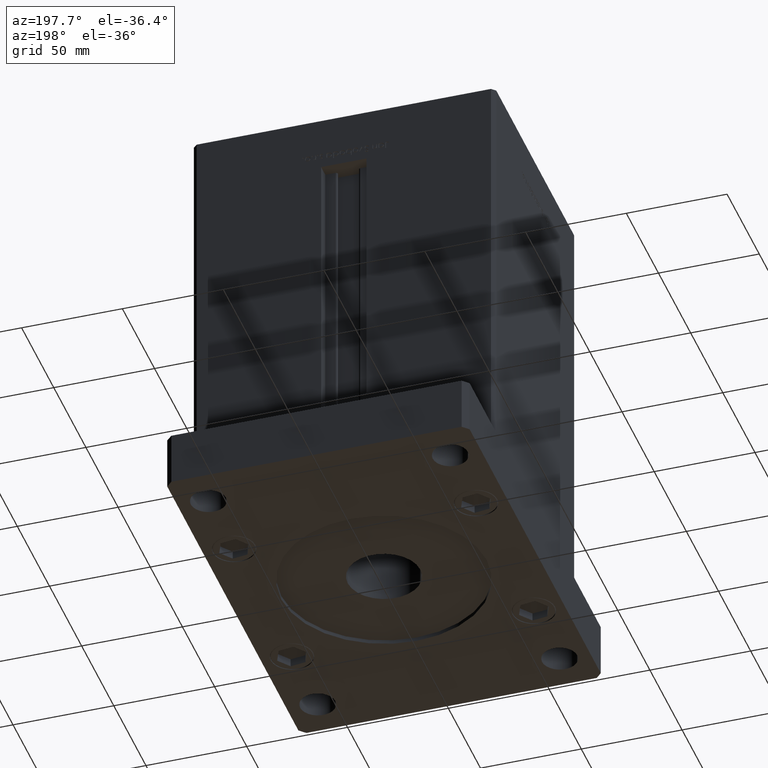
[diagram: clean part render]
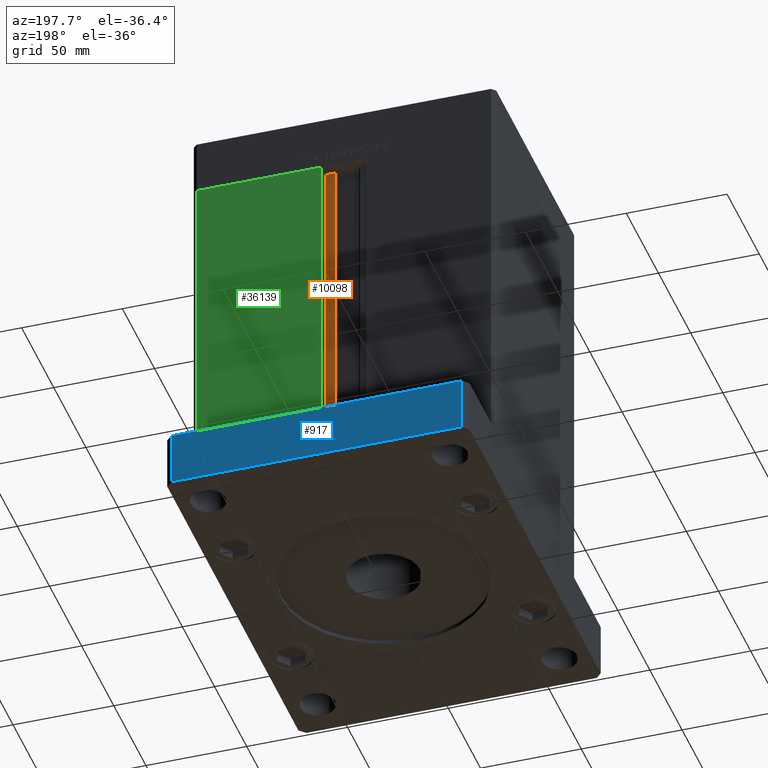
[diagram: same view with three faces highlighted in distinct colors, each labeled with its STEP entity id]
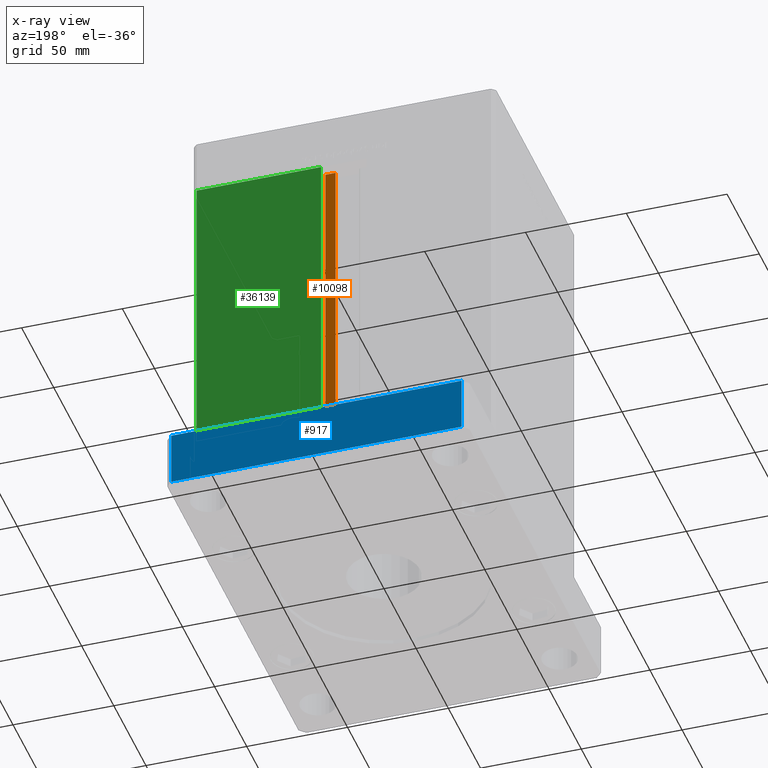
[diagram: x-ray of the same camera — body ghosted, the three highlighted faces saturated]
A machine part, auxiliary view with three faces highlighted in distinct colors.
The next image is the same camera in x-ray (body ghosted, the three faces saturated) — at least one of them is partly hidden behind the body in this view.
Their STEP definitions:

[orange] entity #10098 — the highlighted planar face has unit normal (0, -1, 0).
#336 = VERTEX_POINT ( 'NONE', #37083 ) ;
#1177 = ORIENTED_EDGE ( 'NONE', *, *, #44383, .F. ) ;
#1208 = CARTESIAN_POINT ( 'NONE',  ( 11.25000000000000178, 55.99999999999999289, 0.000000000000000000 ) ) ;
#4199 = AXIS2_PLACEMENT_3D ( 'NONE', #44657, #31648, #27309 ) ;
#4379 = ORIENTED_EDGE ( 'NONE', *, *, #12948, .F. ) ;
#4642 = EDGE_CURVE ( 'NONE', #43501, #336, #52646, .T. ) ;
#5302 = DIRECTION ( 'NONE',  ( -0.000000000000000000, -0.000000000000000000, 1.000000000000000000 ) ) ;
#6013 = EDGE_LOOP ( 'NONE', ( #4379, #1177, #35455, #41791 ) ) ;
#8189 = CARTESIAN_POINT ( 'NONE',  ( 11.25000000000000178, 55.99999999999999289, 147.0000000000000000 ) ) ;
#10098 = ADVANCED_FACE ( 'NONE', ( #42247 ), #52278, .F. ) ;
#11547 = VERTEX_POINT ( 'NONE', #1208 ) ;
#12633 = CARTESIAN_POINT ( 'NONE',  ( 6.183333333334001480, 55.99999999999999289, 0.000000000000000000 ) ) ;
#12948 = EDGE_CURVE ( 'NONE', #11547, #43501, #52801, .T. ) ;
#13420 = LINE ( 'NONE', #33537, #30614 ) ;
#14949 = CARTESIAN_POINT ( 'NONE',  ( 0.000000000000000000, 55.99999999999999289, 147.0000000000000000 ) ) ;
#16145 = VECTOR ( 'NONE', #52381, 1000.000000000000000 ) ;
#22863 = CARTESIAN_POINT ( 'NONE',  ( 6.183333333334001480, 55.99999999999999289, 0.000000000000000000 ) ) ;
#27309 = DIRECTION ( 'NONE',  ( 0.000000000000000000, -0.000000000000000000, -1.000000000000000000 ) ) ;
#27856 = DIRECTION ( 'NONE',  ( -0.000000000000000000, -0.000000000000000000, 1.000000000000000000 ) ) ;
#28023 = DIRECTION ( 'NONE',  ( 1.000000000000000000, 0.000000000000000000, 0.000000000000000000 ) ) ;
#28222 = EDGE_CURVE ( 'NONE', #29184, #336, #13420, .T. ) ;
#28275 = LINE ( 'NONE', #22863, #39726 ) ;
#29184 = VERTEX_POINT ( 'NONE', #12633 ) ;
#30614 = VECTOR ( 'NONE', #5302, 1000.000000000000000 ) ;
#31648 = DIRECTION ( 'NONE',  ( 0.000000000000000000, -1.000000000000000000, 0.000000000000000000 ) ) ;
#31918 = CARTESIAN_POINT ( 'NONE',  ( 11.25000000000000178, 55.99999999999999289, 0.000000000000000000 ) ) ;
#33537 = CARTESIAN_POINT ( 'NONE',  ( 6.183333333334001480, 55.99999999999999289, 0.000000000000000000 ) ) ;
#35455 = ORIENTED_EDGE ( 'NONE', *, *, #28222, .T. ) ;
#37083 = CARTESIAN_POINT ( 'NONE',  ( 6.183333333334001480, 55.99999999999999289, 147.0000000000000000 ) ) ;
#39726 = VECTOR ( 'NONE', #28023, 1000.000000000000000 ) ;
#41791 = ORIENTED_EDGE ( 'NONE', *, *, #4642, .F. ) ;
#42247 = FACE_OUTER_BOUND ( 'NONE', #6013, .T. ) ;
#43501 = VERTEX_POINT ( 'NONE', #8189 ) ;
#44383 = EDGE_CURVE ( 'NONE', #29184, #11547, #28275, .T. ) ;
#44657 = CARTESIAN_POINT ( 'NONE',  ( 6.183333333334001480, 55.99999999999999289, 0.000000000000000000 ) ) ;
#47593 = VECTOR ( 'NONE', #27856, 1000.000000000000000 ) ;
#52278 = PLANE ( 'NONE',  #4199 ) ;
#52381 = DIRECTION ( 'NONE',  ( -1.000000000000000000, 0.000000000000000000, 0.000000000000000000 ) ) ;
#52646 = LINE ( 'NONE', #14949, #16145 ) ;
#52801 = LINE ( 'NONE', #31918, #47593 ) ;

[blue] entity #917 — the highlighted planar face has unit normal (0, -1, 0).
#65 = DIRECTION ( 'NONE',  ( -1.000000000000000000, -1.927470528863118062E-16, 0.000000000000000000 ) ) ;
#917 = ADVANCED_FACE ( 'NONE', ( #16833 ), #49943, .F. ) ;
#3238 = VECTOR ( 'NONE', #21190, 1000.000000000000000 ) ;
#4132 = LINE ( 'NONE', #53487, #25747 ) ;
#4398 = LINE ( 'NONE', #41293, #3238 ) ;
#5618 = EDGE_LOOP ( 'NONE', ( #40736, #32053, #42585, #19294 ) ) ;
#5748 = EDGE_CURVE ( 'NONE', #44791, #35055, #4398, .T. ) ;
#5819 = EDGE_CURVE ( 'NONE', #14087, #44791, #4132, .T. ) ;
#5930 = CARTESIAN_POINT ( 'NONE',  ( -72.00000000000002842, 105.0000000000000000, 27.00000000000000000 ) ) ;
#7121 = DIRECTION ( 'NONE',  ( -0.000000000000000000, -0.000000000000000000, -1.000000000000000000 ) ) ;
#7377 = CARTESIAN_POINT ( 'NONE',  ( 72.00000000000004263, 105.0000000000000284, 27.00000000000000000 ) ) ;
#8204 = CARTESIAN_POINT ( 'NONE',  ( 72.00000000000004263, 105.0000000000000284, 27.00000000000000000 ) ) ;
#13012 = DIRECTION ( 'NONE',  ( -1.000000000000000000, -1.927470528863118062E-16, 0.000000000000000000 ) ) ;
#14087 = VERTEX_POINT ( 'NONE', #8204 ) ;
#14498 = VECTOR ( 'NONE', #7121, 1000.000000000000000 ) ;
#16039 = DIRECTION ( 'NONE',  ( 1.000000000000000000, 1.927470528863118309E-16, 0.000000000000000000 ) ) ;
#16833 = FACE_OUTER_BOUND ( 'NONE', #5618, .T. ) ;
#17081 = LINE ( 'NONE', #50190, #35384 ) ;
#19294 = ORIENTED_EDGE ( 'NONE', *, *, #40287, .T. ) ;
#21190 = DIRECTION ( 'NONE',  ( -0.000000000000000000, -0.000000000000000000, -1.000000000000000000 ) ) ;
#22105 = AXIS2_PLACEMENT_3D ( 'NONE', #45876, #41808, #16039 ) ;
#25747 = VECTOR ( 'NONE', #65, 1000.000000000000000 ) ;
#30814 = CARTESIAN_POINT ( 'NONE',  ( 72.00000000000004263, 105.0000000000000284, 0.000000000000000000 ) ) ;
#32053 = ORIENTED_EDGE ( 'NONE', *, *, #5748, .F. ) ;
#33884 = CARTESIAN_POINT ( 'NONE',  ( -72.00000000000002842, 105.0000000000000000, 0.000000000000000000 ) ) ;
#35055 = VERTEX_POINT ( 'NONE', #33884 ) ;
#35384 = VECTOR ( 'NONE', #13012, 1000.000000000000000 ) ;
#40287 = EDGE_CURVE ( 'NONE', #14087, #50668, #52679, .T. ) ;
#40736 = ORIENTED_EDGE ( 'NONE', *, *, #42779, .T. ) ;
#41293 = CARTESIAN_POINT ( 'NONE',  ( -72.00000000000002842, 105.0000000000000000, 27.00000000000000000 ) ) ;
#41808 = DIRECTION ( 'NONE',  ( 1.927470528863118309E-16, -1.000000000000000000, 0.000000000000000000 ) ) ;
#42585 = ORIENTED_EDGE ( 'NONE', *, *, #5819, .F. ) ;
#42779 = EDGE_CURVE ( 'NONE', #50668, #35055, #17081, .T. ) ;
#44791 = VERTEX_POINT ( 'NONE', #5930 ) ;
#45876 = CARTESIAN_POINT ( 'NONE',  ( 72.00000000000004263, 105.0000000000000284, 27.00000000000000000 ) ) ;
#49943 = PLANE ( 'NONE',  #22105 ) ;
#50190 = CARTESIAN_POINT ( 'NONE',  ( 72.00000000000004263, 105.0000000000000284, 0.000000000000000000 ) ) ;
#50668 = VERTEX_POINT ( 'NONE', #30814 ) ;
#52679 = LINE ( 'NONE', #7377, #14498 ) ;
#53487 = CARTESIAN_POINT ( 'NONE',  ( 72.00000000000004263, 105.0000000000000284, 27.00000000000000000 ) ) ;

[green] entity #36139 — the highlighted planar face has unit normal (-0, -1, 0).
#2477 = CARTESIAN_POINT ( 'NONE',  ( 11.24999999999999467, 62.49999999999999289, 147.0000000000000000 ) ) ;
#2538 = CARTESIAN_POINT ( 'NONE',  ( 11.25000000000000178, 62.49999999999999289, 0.000000000000000000 ) ) ;
#3198 = EDGE_CURVE ( 'NONE', #33662, #22881, #46549, .T. ) ;
#4192 = CARTESIAN_POINT ( 'NONE',  ( 73.00000000000001421, 62.50000000000000000, 147.0000000000000000 ) ) ;
#8193 = PLANE ( 'NONE',  #18678 ) ;
#9379 = CARTESIAN_POINT ( 'NONE',  ( 73.00000000000001421, 62.50000000000000000, 147.0000000000000000 ) ) ;
#12693 = ORIENTED_EDGE ( 'NONE', *, *, #30462, .T. ) ;
#13537 = ORIENTED_EDGE ( 'NONE', *, *, #38850, .T. ) ;
#13582 = DIRECTION ( 'NONE',  ( 1.000000000000000000, -1.123707514802790025E-16, 0.000000000000000000 ) ) ;
#17312 = CARTESIAN_POINT ( 'NONE',  ( -11.25000000000000178, 62.49999999999999289, 147.0000000000000000 ) ) ;
#17885 = VECTOR ( 'NONE', #44465, 1000.000000000000000 ) ;
#18126 = VERTEX_POINT ( 'NONE', #2538 ) ;
#18648 = VECTOR ( 'NONE', #25929, 1000.000000000000000 ) ;
#18678 = AXIS2_PLACEMENT_3D ( 'NONE', #38547, #46957, #13582 ) ;
#22881 = VERTEX_POINT ( 'NONE', #53066 ) ;
#25929 = DIRECTION ( 'NONE',  ( -0.000000000000000000, -0.000000000000000000, -1.000000000000000000 ) ) ;
#26851 = VECTOR ( 'NONE', #45823, 1000.000000000000000 ) ;
#27002 = LINE ( 'NONE', #51153, #28841 ) ;
#27929 = ORIENTED_EDGE ( 'NONE', *, *, #3198, .T. ) ;
#28809 = FACE_OUTER_BOUND ( 'NONE', #52312, .T. ) ;
#28841 = VECTOR ( 'NONE', #43546, 1000.000000000000000 ) ;
#30462 = EDGE_CURVE ( 'NONE', #18126, #37196, #27002, .T. ) ;
#33662 = VERTEX_POINT ( 'NONE', #4192 ) ;
#36139 = ADVANCED_FACE ( 'NONE', ( #28809 ), #8193, .F. ) ;
#36338 = LINE ( 'NONE', #52870, #17885 ) ;
#37196 = VERTEX_POINT ( 'NONE', #2477 ) ;
#38547 = CARTESIAN_POINT ( 'NONE',  ( -11.25000000000000178, 62.49999999999999289, 147.0000000000000000 ) ) ;
#38850 = EDGE_CURVE ( 'NONE', #22881, #18126, #36338, .T. ) ;
#41228 = LINE ( 'NONE', #17312, #26851 ) ;
#43546 = DIRECTION ( 'NONE',  ( -0.000000000000000000, -0.000000000000000000, 1.000000000000000000 ) ) ;
#44465 = DIRECTION ( 'NONE',  ( -1.000000000000000000, 1.123707514802790025E-16, 0.000000000000000000 ) ) ;
#44761 = ORIENTED_EDGE ( 'NONE', *, *, #51615, .T. ) ;
#45823 = DIRECTION ( 'NONE',  ( 1.000000000000000000, 0.000000000000000000, 0.000000000000000000 ) ) ;
#46549 = LINE ( 'NONE', #9379, #18648 ) ;
#46957 = DIRECTION ( 'NONE',  ( -1.123707514802790025E-16, -1.000000000000000000, 0.000000000000000000 ) ) ;
#51153 = CARTESIAN_POINT ( 'NONE',  ( 11.25000000000000178, 62.49999999999999289, 0.000000000000000000 ) ) ;
#51615 = EDGE_CURVE ( 'NONE', #37196, #33662, #41228, .T. ) ;
#52312 = EDGE_LOOP ( 'NONE', ( #13537, #12693, #44761, #27929 ) ) ;
#52870 = CARTESIAN_POINT ( 'NONE',  ( -11.25000000000000178, 62.49999999999999289, 0.000000000000000000 ) ) ;
#53066 = CARTESIAN_POINT ( 'NONE',  ( 73.00000000000001421, 62.50000000000000000, 0.000000000000000000 ) ) ;